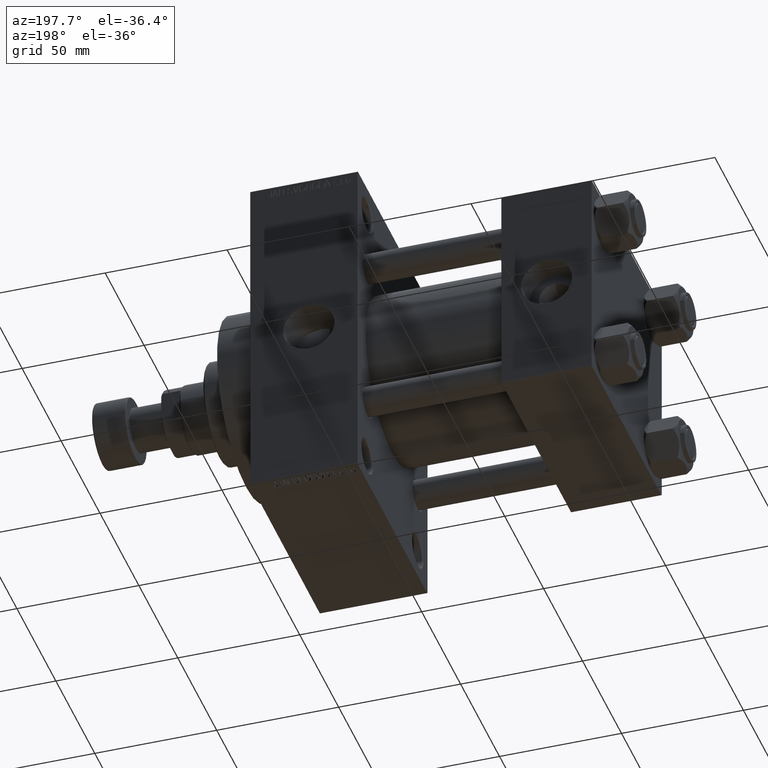
[diagram: clean part render]
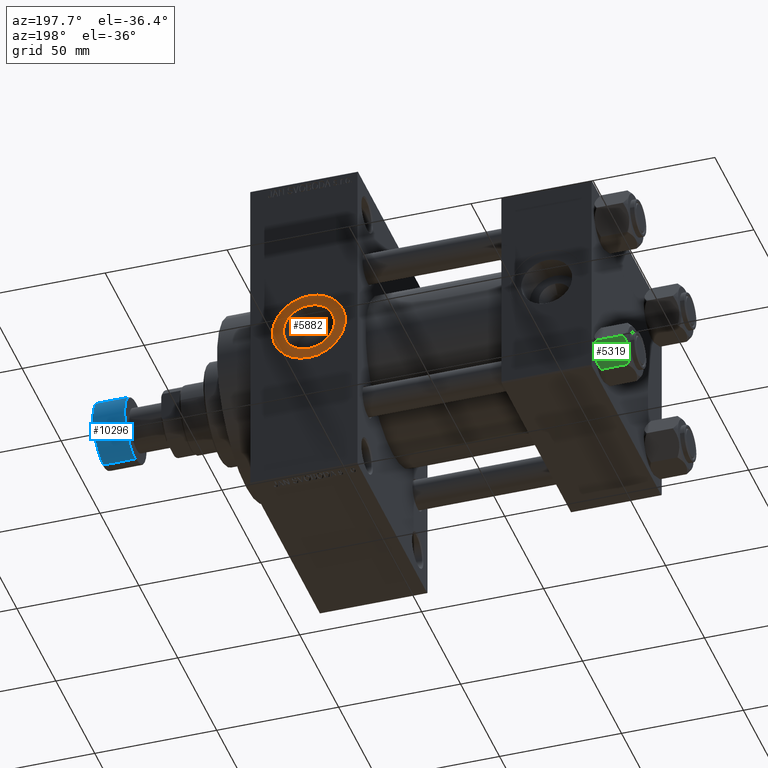
[diagram: same view with three faces highlighted in distinct colors, each labeled with its STEP entity id]
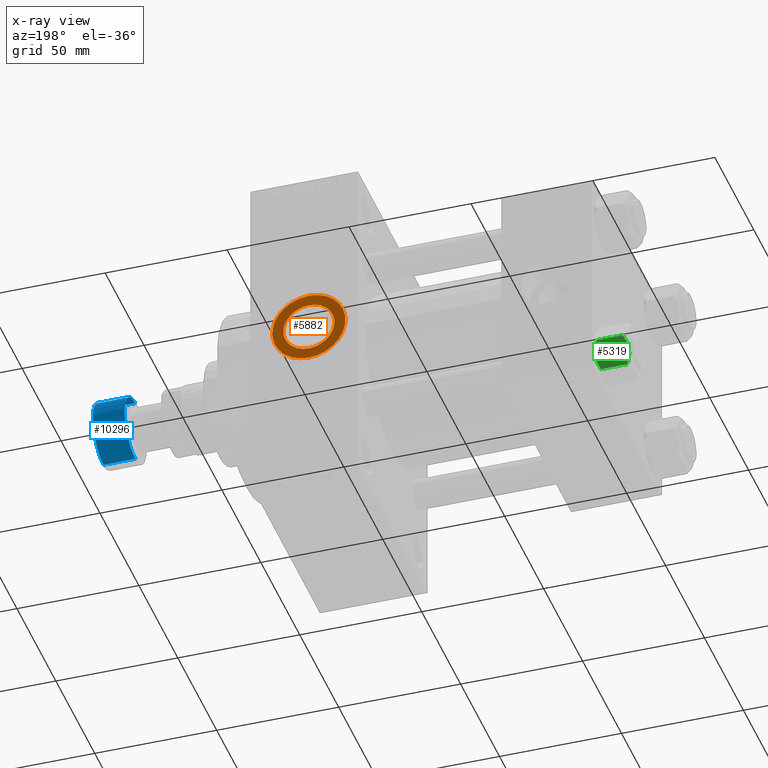
[diagram: x-ray of the same camera — body ghosted, the three highlighted faces saturated]
A machine part, auxiliary view with three faces highlighted in distinct colors.
The next image is the same camera in x-ray (body ghosted, the three faces saturated) — at least one of them is partly hidden behind the body in this view.
Their STEP definitions:

[orange] entity #5882 — the highlighted planar face has unit normal (0, 1, 0).
#974 = AXIS2_PLACEMENT_3D ( 'NONE', #40742, #4105, #12527 ) ;
#1119 = CARTESIAN_POINT ( 'NONE',  ( 116.0000000000000000, 44.80000000000001137, -2.198945251238207943E-15 ) ) ;
#2193 = DIRECTION ( 'NONE',  ( 0.000000000000000000, 0.000000000000000000, 1.000000000000000000 ) ) ;
#3487 = EDGE_CURVE ( 'NONE', #11304, #39681, #13478, .T. ) ;
#3812 = EDGE_LOOP ( 'NONE', ( #33871, #20818 ) ) ;
#4105 = DIRECTION ( 'NONE',  ( 0.000000000000000000, 1.000000000000000000, 0.000000000000000000 ) ) ;
#5153 = PLANE ( 'NONE',  #47393 ) ;
#5882 = ADVANCED_FACE ( 'NONE', ( #8083, #26873 ), #5153, .T. ) ;
#6092 = CARTESIAN_POINT ( 'NONE',  ( 116.0000000000000000, 44.80000000000001137, -15.00000000000001421 ) ) ;
#8083 = FACE_BOUND ( 'NONE', #21688, .T. ) ;
#8319 = DIRECTION ( 'NONE',  ( 0.000000000000000000, -0.000000000000000000, 1.000000000000000000 ) ) ;
#11304 = VERTEX_POINT ( 'NONE', #36027 ) ;
#12527 = DIRECTION ( 'NONE',  ( 0.000000000000000000, 0.000000000000000000, 1.000000000000000000 ) ) ;
#13478 = CIRCLE ( 'NONE', #31156, 10.48000000000000043 ) ;
#13886 = CIRCLE ( 'NONE', #33111, 15.00000000000001243 ) ;
#15840 = DIRECTION ( 'NONE',  ( 0.000000000000000000, 1.000000000000000000, 0.000000000000000000 ) ) ;
#16817 = CARTESIAN_POINT ( 'NONE',  ( 116.0000000000000000, 44.80000000000001847, 10.47999999999999865 ) ) ;
#18868 = ORIENTED_EDGE ( 'NONE', *, *, #3487, .F. ) ;
#19068 = EDGE_CURVE ( 'NONE', #28516, #20684, #13886, .T. ) ;
#20684 = VERTEX_POINT ( 'NONE', #6092 ) ;
#20818 = ORIENTED_EDGE ( 'NONE', *, *, #38517, .T. ) ;
#21688 = EDGE_LOOP ( 'NONE', ( #40380, #18868 ) ) ;
#21882 = CARTESIAN_POINT ( 'NONE',  ( 116.0000000000000000, 44.80000000000001847, -2.198945251238207943E-15 ) ) ;
#23357 = EDGE_CURVE ( 'NONE', #39681, #11304, #42538, .T. ) ;
#24770 = DIRECTION ( 'NONE',  ( 0.000000000000000000, 0.000000000000000000, 1.000000000000000000 ) ) ;
#26873 = FACE_OUTER_BOUND ( 'NONE', #3812, .T. ) ;
#27103 = DIRECTION ( 'NONE',  ( 0.000000000000000000, 1.000000000000000000, 0.000000000000000000 ) ) ;
#28029 = CIRCLE ( 'NONE', #38034, 15.00000000000001243 ) ;
#28238 = DIRECTION ( 'NONE',  ( 0.000000000000000000, 1.000000000000000000, 0.000000000000000000 ) ) ;
#28516 = VERTEX_POINT ( 'NONE', #32133 ) ;
#28867 = DIRECTION ( 'NONE',  ( 0.000000000000000000, 1.000000000000000000, 0.000000000000000000 ) ) ;
#30718 = CARTESIAN_POINT ( 'NONE',  ( 116.0000000000000000, 44.80000000000001137, -2.198945251238207943E-15 ) ) ;
#31156 = AXIS2_PLACEMENT_3D ( 'NONE', #21882, #28867, #24770 ) ;
#32133 = CARTESIAN_POINT ( 'NONE',  ( 116.0000000000000000, 44.80000000000001137, 15.00000000000001066 ) ) ;
#33111 = AXIS2_PLACEMENT_3D ( 'NONE', #46073, #28238, #2193 ) ;
#33871 = ORIENTED_EDGE ( 'NONE', *, *, #19068, .T. ) ;
#36027 = CARTESIAN_POINT ( 'NONE',  ( 116.0000000000000000, 44.80000000000001847, -10.48000000000000220 ) ) ;
#38034 = AXIS2_PLACEMENT_3D ( 'NONE', #1119, #15840, #45240 ) ;
#38517 = EDGE_CURVE ( 'NONE', #20684, #28516, #28029, .T. ) ;
#39681 = VERTEX_POINT ( 'NONE', #16817 ) ;
#40380 = ORIENTED_EDGE ( 'NONE', *, *, #23357, .F. ) ;
#40742 = CARTESIAN_POINT ( 'NONE',  ( 116.0000000000000000, 44.80000000000001847, -2.198945251238207943E-15 ) ) ;
#42538 = CIRCLE ( 'NONE', #974, 10.48000000000000043 ) ;
#45240 = DIRECTION ( 'NONE',  ( 0.000000000000000000, 0.000000000000000000, 1.000000000000000000 ) ) ;
#46073 = CARTESIAN_POINT ( 'NONE',  ( 116.0000000000000000, 44.80000000000001137, -2.198945251238207943E-15 ) ) ;
#47393 = AXIS2_PLACEMENT_3D ( 'NONE', #30718, #27103, #8319 ) ;

[blue] entity #10296 — the highlighted cylindrical surface (edge-blend (fillet) strip) has radius 13.5 mm, axis along (1, 0, 0).
#312 = DIRECTION ( 'NONE',  ( -0.000000000000000000, -0.000000000000000000, -1.000000000000000000 ) ) ;
#666 = DIRECTION ( 'NONE',  ( 0.000000000000000000, 0.000000000000000000, 1.000000000000000000 ) ) ;
#723 = VERTEX_POINT ( 'NONE', #21975 ) ;
#1159 = VERTEX_POINT ( 'NONE', #24931 ) ;
#4202 = DIRECTION ( 'NONE',  ( 0.000000000000000000, 0.000000000000000000, 1.000000000000000000 ) ) ;
#4701 = CIRCLE ( 'NONE', #20097, 13.50000000000000000 ) ;
#8060 = VERTEX_POINT ( 'NONE', #46095 ) ;
#8652 = EDGE_CURVE ( 'NONE', #723, #45737, #21364, .T. ) ;
#9464 = CYLINDRICAL_SURFACE ( 'NONE', #44465, 13.50000000000000000 ) ;
#10296 = ADVANCED_FACE ( 'NONE', ( #24401 ), #9464, .T. ) ;
#14181 = ORIENTED_EDGE ( 'NONE', *, *, #17753, .T. ) ;
#15193 = AXIS2_PLACEMENT_3D ( 'NONE', #33182, #18733, #29566 ) ;
#15465 = ORIENTED_EDGE ( 'NONE', *, *, #8652, .T. ) ;
#17753 = EDGE_CURVE ( 'NONE', #45737, #1159, #43749, .T. ) ;
#18665 = CARTESIAN_POINT ( 'NONE',  ( -13.50000000000000000, 1.653273178848926867E-15, -13.50000000000000000 ) ) ;
#18733 = DIRECTION ( 'NONE',  ( 0.000000000000000000, 0.000000000000000000, 1.000000000000000000 ) ) ;
#20097 = AXIS2_PLACEMENT_3D ( 'NONE', #30449, #312, #22517 ) ;
#21363 = VECTOR ( 'NONE', #666, 1000.000000000000000 ) ;
#21364 = CIRCLE ( 'NONE', #15193, 13.50000000000000000 ) ;
#21631 = EDGE_LOOP ( 'NONE', ( #15465, #14181, #23891, #32199 ) ) ;
#21975 = CARTESIAN_POINT ( 'NONE',  ( 13.50000000000000000, 0.000000000000000000, -13.50000000000000000 ) ) ;
#22517 = DIRECTION ( 'NONE',  ( 1.000000000000000000, 0.000000000000000000, 0.000000000000000000 ) ) ;
#22634 = CARTESIAN_POINT ( 'NONE',  ( 13.50000000000000000, 0.000000000000000000, -14.00000000000000000 ) ) ;
#23819 = VECTOR ( 'NONE', #4202, 1000.000000000000000 ) ;
#23891 = ORIENTED_EDGE ( 'NONE', *, *, #27925, .T. ) ;
#24161 = CARTESIAN_POINT ( 'NONE',  ( 0.000000000000000000, 0.000000000000000000, -14.00000000000000000 ) ) ;
#24401 = FACE_OUTER_BOUND ( 'NONE', #21631, .T. ) ;
#24931 = CARTESIAN_POINT ( 'NONE',  ( -13.50000000000000000, 1.653273178848926867E-15, -0.5000000000000004441 ) ) ;
#27777 = DIRECTION ( 'NONE',  ( 0.000000000000000000, 0.000000000000000000, 1.000000000000000000 ) ) ;
#27925 = EDGE_CURVE ( 'NONE', #1159, #8060, #4701, .T. ) ;
#29566 = DIRECTION ( 'NONE',  ( 1.000000000000000000, 0.000000000000000000, 0.000000000000000000 ) ) ;
#30449 = CARTESIAN_POINT ( 'NONE',  ( 0.000000000000000000, 0.000000000000000000, -0.5000000000000004441 ) ) ;
#32199 = ORIENTED_EDGE ( 'NONE', *, *, #46473, .F. ) ;
#33182 = CARTESIAN_POINT ( 'NONE',  ( 0.000000000000000000, 0.000000000000000000, -13.50000000000000000 ) ) ;
#43749 = LINE ( 'NONE', #47368, #23819 ) ;
#44465 = AXIS2_PLACEMENT_3D ( 'NONE', #24161, #27777, #47034 ) ;
#44783 = LINE ( 'NONE', #22634, #21363 ) ;
#45737 = VERTEX_POINT ( 'NONE', #18665 ) ;
#46095 = CARTESIAN_POINT ( 'NONE',  ( 13.50000000000000000, 0.000000000000000000, -0.5000000000000004441 ) ) ;
#46473 = EDGE_CURVE ( 'NONE', #723, #8060, #44783, .T. ) ;
#47034 = DIRECTION ( 'NONE',  ( 1.000000000000000000, 0.000000000000000000, 0.000000000000000000 ) ) ;
#47368 = CARTESIAN_POINT ( 'NONE',  ( -13.50000000000000000, 1.653273178848926867E-15, -14.00000000000000000 ) ) ;

[green] entity #5319 — the highlighted planar face has unit normal (0, -0.866, 0.5).
#1665 = LINE ( 'NONE', #19313, #27466 ) ;
#3874 = CARTESIAN_POINT ( 'NONE',  ( -10.69662495661650148, -1.599332489581326344, -13.28854452935655317 ) ) ;
#4683 = EDGE_CURVE ( 'NONE', #45312, #45466, #5267, .T. ) ;
#4770 = CARTESIAN_POINT ( 'NONE',  ( -6.733375043383495573, -8.463882702393842550, -0.7114554706434480513 ) ) ;
#5244 = VERTEX_POINT ( 'NONE', #41013 ) ;
#5267 = B_SPLINE_CURVE_WITH_KNOTS ( 'NONE', 3,
 ( #10802, #37289, #8827, #26918, #27147, #45225, #8592, #40892 ),
 .UNSPECIFIED., .F., .F.,
 ( 4, 2, 2, 4 ),
 ( 2.544312114893457383E-07, 0.003011550106433538623, 0.004517197944044561847, 0.006022845781655586372 ),
 .UNSPECIFIED. ) ;
#5319 = ADVANCED_FACE ( 'NONE', ( #29466 ), #18871, .F. ) ;
#5911 = VERTEX_POINT ( 'NONE', #11690 ) ;
#6225 = CARTESIAN_POINT ( 'NONE',  ( -7.700834831386346835, -6.788193195293090731, -13.80960203119266438 ) ) ;
#7504 = CARTESIAN_POINT ( 'NONE',  ( -9.716999946243698005, -3.296092779912219939, -13.84547602999602667 ) ) ;
#7950 = ORIENTED_EDGE ( 'NONE', *, *, #9424, .F. ) ;
#8592 = CARTESIAN_POINT ( 'NONE',  ( -8.969430103550386946, -4.590921729663310025, 6.662949392646161370E-15 ) ) ;
#8827 = CARTESIAN_POINT ( 'NONE',  ( -10.69859855102500923, -1.595914123792257611, -0.7141438259524607313 ) ) ;
#8863 = CARTESIAN_POINT ( 'NONE',  ( -8.715000000000006963, -5.031607595987586556, 0.000000000000000000 ) ) ;
#9424 = EDGE_CURVE ( 'NONE', #5244, #5911, #25120, .T. ) ;
#10579 = EDGE_CURVE ( 'NONE', #32612, #33481, #1665, .T. ) ;
#10652 = CARTESIAN_POINT ( 'NONE',  ( -11.61999999999999922, 6.270720075510426383E-15, -12.44321519197518988 ) ) ;
#10802 = CARTESIAN_POINT ( 'NONE',  ( -11.61999999999999922, 6.270720075409452187E-15, -1.556784808024810562 ) ) ;
#10867 = ORIENTED_EDGE ( 'NONE', *, *, #38633, .F. ) ;
#11690 = CARTESIAN_POINT ( 'NONE',  ( -11.61999999999999922, 6.270720075510426383E-15, -12.44321519197518988 ) ) ;
#11753 = ORIENTED_EDGE ( 'NONE', *, *, #46572, .F. ) ;
#12614 = B_SPLINE_CURVE_WITH_KNOTS ( 'NONE', 3,
 ( #39247, #12745, #27449, #43097, #6225, #23837, #20943, #31781 ),
 .UNSPECIFIED., .F., .F.,
 ( 4, 2, 2, 4 ),
 ( 2.544312114906334931E-07, 0.003011550106433543393, 0.004517197944044570521, 0.006022845781655596781 ),
 .UNSPECIFIED. ) ;
#12745 = CARTESIAN_POINT ( 'NONE',  ( -6.265545725125283738, -9.274186850887380373, -12.89876091710046779 ) ) ;
#12751 = ORIENTED_EDGE ( 'NONE', *, *, #4683, .F. ) ;
#13908 = CARTESIAN_POINT ( 'NONE',  ( -5.810000000000000497, -10.06321519197517844, -1.556784808024813893 ) ) ;
#14257 = CARTESIAN_POINT ( 'NONE',  ( -11.16498164529022219, -0.7881149087337223635, -12.89823354668505040 ) ) ;
#15238 = CARTESIAN_POINT ( 'NONE',  ( -5.810000000000000497, -10.06321519197517844, -14.00000000000000000 ) ) ;
#16490 = ORIENTED_EDGE ( 'NONE', *, *, #31403, .F. ) ;
#18234 = CARTESIAN_POINT ( 'NONE',  ( -5.810000000000000497, -10.06321519197517844, -12.44321519197518633 ) ) ;
#18871 = PLANE ( 'NONE',  #22800 ) ;
#19313 = CARTESIAN_POINT ( 'NONE',  ( -5.810000000000000497, -10.06321519197517844, -14.00000000000000000 ) ) ;
#20943 = CARTESIAN_POINT ( 'NONE',  ( -8.460569896449619876, -5.472293462311856871, -14.00000000000000888 ) ) ;
#21741 = CARTESIAN_POINT ( 'NONE',  ( -9.220295946303428636, -4.156409344131446026, -14.00000000000000711 ) ) ;
#22635 = VECTOR ( 'NONE', #25932, 1000.000000000000000 ) ;
#22800 = AXIS2_PLACEMENT_3D ( 'NONE', #15238, #33560, #44631 ) ;
#23159 = CARTESIAN_POINT ( 'NONE',  ( -11.61999999999999922, 6.270720075409452187E-15, -1.556784808024810562 ) ) ;
#23569 = CARTESIAN_POINT ( 'NONE',  ( -7.713000053756304375, -6.767122412062951398, -0.1545239700039803266 ) ) ;
#23837 = CARTESIAN_POINT ( 'NONE',  ( -8.202333004087902779, -5.919572880271047666, -13.96005881939309745 ) ) ;
#25120 = B_SPLINE_CURVE_WITH_KNOTS ( 'NONE', 3,
 ( #47270, #21741, #7504, #3874, #14257, #10652 ),
 .UNSPECIFIED., .F., .F.,
 ( 4, 2, 4 ),
 ( 0.006022845781655596781, 0.009013049135303641962, 0.01200325248895168714 ),
 .UNSPECIFIED. ) ;
#25932 = DIRECTION ( 'NONE',  ( -0.000000000000000000, -0.000000000000000000, 1.000000000000000000 ) ) ;
#26918 = CARTESIAN_POINT ( 'NONE',  ( -9.974696630283190757, -2.849749030213787115, -0.3002673809867329457 ) ) ;
#27147 = CARTESIAN_POINT ( 'NONE',  ( -9.729165168613654657, -3.275021996682076608, -0.1903979688073365595 ) ) ;
#27449 = CARTESIAN_POINT ( 'NONE',  ( -6.731401448974989599, -8.467301068182909063, -13.28585617404753272 ) ) ;
#27466 = VECTOR ( 'NONE', #34239, 1000.000000000000000 ) ;
#28014 = B_SPLINE_CURVE_WITH_KNOTS ( 'NONE', 3,
 ( #8863, #34184, #23569, #4770, #30092, #41637 ),
 .UNSPECIFIED., .F., .F.,
 ( 4, 2, 4 ),
 ( 0.006022845781655586372, 0.009013049135303635023, 0.01200325248895168367 ),
 .UNSPECIFIED. ) ;
#28647 = EDGE_LOOP ( 'NONE', ( #16490, #32982, #11753, #12751, #10867, #7950 ) ) ;
#29466 = FACE_OUTER_BOUND ( 'NONE', #28647, .T. ) ;
#30092 = CARTESIAN_POINT ( 'NONE',  ( -6.265018354709776638, -9.275100283241451748, -1.101766453314952043 ) ) ;
#31403 = EDGE_CURVE ( 'NONE', #32612, #5244, #12614, .T. ) ;
#31781 = CARTESIAN_POINT ( 'NONE',  ( -8.715000000000006963, -5.031607595987586556, -14.00000000000000000 ) ) ;
#32612 = VERTEX_POINT ( 'NONE', #18234 ) ;
#32920 = CARTESIAN_POINT ( 'NONE',  ( -11.61999999999999922, 6.288644352490894150E-15, -14.00000000000000000 ) ) ;
#32982 = ORIENTED_EDGE ( 'NONE', *, *, #10579, .T. ) ;
#33481 = VERTEX_POINT ( 'NONE', #13908 ) ;
#33560 = DIRECTION ( 'NONE',  ( 0.8660254037844390407, 0.4999999999999995004, 0.000000000000000000 ) ) ;
#34184 = CARTESIAN_POINT ( 'NONE',  ( -8.209704053696567527, -5.906805847843720869, 6.159623592433269699E-15 ) ) ;
#34239 = DIRECTION ( 'NONE',  ( -0.000000000000000000, -0.000000000000000000, 1.000000000000000000 ) ) ;
#37289 = CARTESIAN_POINT ( 'NONE',  ( -11.16445427487471420, -0.7890283410877914072, -1.101239082899528432 ) ) ;
#38633 = EDGE_CURVE ( 'NONE', #5911, #45312, #44230, .T. ) ;
#39247 = CARTESIAN_POINT ( 'NONE',  ( -5.810000000000000497, -10.06321519197517844, -12.44321519197518633 ) ) ;
#40892 = CARTESIAN_POINT ( 'NONE',  ( -8.715000000000006963, -5.031607595987586556, 0.000000000000000000 ) ) ;
#41013 = CARTESIAN_POINT ( 'NONE',  ( -8.715000000000006963, -5.031607595987586556, -14.00000000000000000 ) ) ;
#41637 = CARTESIAN_POINT ( 'NONE',  ( -5.810000000000000497, -10.06321519197517844, -1.556784808024813893 ) ) ;
#43097 = CARTESIAN_POINT ( 'NONE',  ( -7.455303369716809847, -7.213466161761383333, -13.69973261901326644 ) ) ;
#43598 = CARTESIAN_POINT ( 'NONE',  ( -8.715000000000006963, -5.031607595987586556, 0.000000000000000000 ) ) ;
#44230 = LINE ( 'NONE', #32920, #22635 ) ;
#44631 = DIRECTION ( 'NONE',  ( -0.4999999999999994449, 0.8660254037844389297, 0.000000000000000000 ) ) ;
#45225 = CARTESIAN_POINT ( 'NONE',  ( -9.227666995912100489, -4.143642311704120118, -0.03994118060690279165 ) ) ;
#45312 = VERTEX_POINT ( 'NONE', #23159 ) ;
#45466 = VERTEX_POINT ( 'NONE', #43598 ) ;
#46572 = EDGE_CURVE ( 'NONE', #45466, #33481, #28014, .T. ) ;
#47270 = CARTESIAN_POINT ( 'NONE',  ( -8.715000000000006963, -5.031607595987586556, -14.00000000000000000 ) ) ;